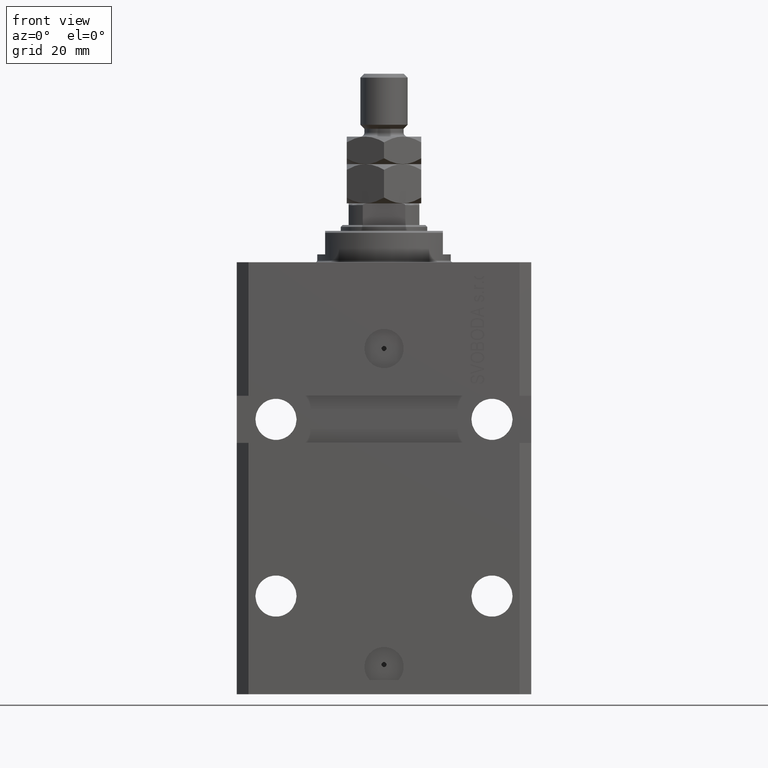
[diagram: clean part render]
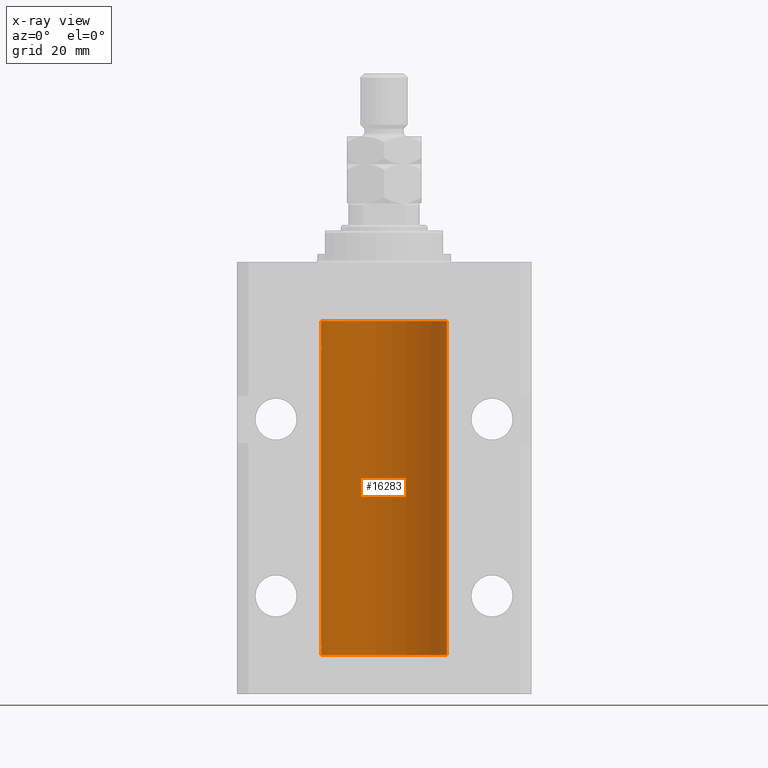
[diagram: x-ray — body ghosted, one internal face saturated and labeled with its STEP entity id]
A machine part, front view, then the same camera in x-ray: the body is ghosted and one INTERNAL B-rep face — a face not visible from any outside direction — is saturated and labeled: STEP entity #16283.
In plain terms, the highlighted cylindrical surface (partial cylindrical patch) has radius 16 mm, axis along (0, 0, 1).
Its self-contained STEP definition (entity closure, byte-faithful):
#416 = EDGE_CURVE ( 'NONE', #16940, #29323, #1516, .T. ) ;
#1516 = CIRCLE ( 'NONE', #7965, 16.00000000000000000 ) ;
#2752 = EDGE_CURVE ( 'NONE', #29323, #20110, #9530, .T. ) ;
#2793 = CARTESIAN_POINT ( 'NONE',  ( -16.00000000000013145, 3.685127046438747128E-13, -98.62500000000343903 ) ) ;
#3386 = DIRECTION ( 'NONE',  ( -0.000000000000000000, -0.000000000000000000, 1.000000000000000000 ) ) ;
#3550 = B_SPLINE_CURVE_WITH_KNOTS ( 'NONE', 3,
 ( #41367, #15644, #26076, #42105, #19141, #48790, #4510, #30739, #30013, #14663, #45089, #45816, #4274, #7250 ),
 .UNSPECIFIED., .F., .F.,
 ( 4, 2, 2, 2, 2, 2, 4 ),
 ( 1.597328219370744179E-19, 0.0002442776652680942405, 0.0004885553305361882643, 0.0009771106610723839011, 0.001221388326340481665, 0.001465665991608579430, 0.001954221322144767369 ),
 .UNSPECIFIED. ) ;
#4274 = CARTESIAN_POINT ( 'NONE',  ( -16.00000000000000000, 0.1631714642025800244, -22.62499999999985789 ) ) ;
#4335 = CYLINDRICAL_SURFACE ( 'NONE', #18904, 16.00000000000000000 ) ;
#4510 = CARTESIAN_POINT ( 'NONE',  ( -15.98779057735153941, 0.6249419637998100407, -21.83670145863507273 ) ) ;
#5359 = ORIENTED_EDGE ( 'NONE', *, *, #2752, .F. ) ;
#6907 = DIRECTION ( 'NONE',  ( 1.000000000000000000, 0.000000000000000000, 0.000000000000000000 ) ) ;
#7250 = CARTESIAN_POINT ( 'NONE',  ( -16.00000000000013145, 3.685127038166941002E-13, -22.62500000000341771 ) ) ;
#7965 = AXIS2_PLACEMENT_3D ( 'NONE', #19784, #42502, #9106 ) ;
#8306 = ORIENTED_EDGE ( 'NONE', *, *, #33682, .T. ) ;
#8417 = ORIENTED_EDGE ( 'NONE', *, *, #26098, .T. ) ;
#9106 = DIRECTION ( 'NONE',  ( 1.000000000000000000, 0.000000000000000000, 0.000000000000000000 ) ) ;
#9530 = LINE ( 'NONE', #42669, #19817 ) ;
#11796 = EDGE_CURVE ( 'NONE', #43022, #32579, #18988, .T. ) ;
#12331 = CARTESIAN_POINT ( 'NONE',  ( -16.00000000000000000, -1.303459030566954747E-14, -97.37500000000000000 ) ) ;
#14147 = DIRECTION ( 'NONE',  ( -0.000000000000000000, -0.000000000000000000, 1.000000000000000000 ) ) ;
#14519 = CARTESIAN_POINT ( 'NONE',  ( -16.00000000000000000, 1.959434878635765131E-15, -100.0999999999999943 ) ) ;
#14650 = CARTESIAN_POINT ( 'NONE',  ( -16.00000000000000711, 0.08259886010188650929, -97.37500000000000000 ) ) ;
#14663 = CARTESIAN_POINT ( 'NONE',  ( -15.99070426498503217, 0.5462220647145618058, -22.31460064614143590 ) ) ;
#15104 = VERTEX_POINT ( 'NONE', #29884 ) ;
#15418 = CARTESIAN_POINT ( 'NONE',  ( -16.00000000000013145, 3.685127038166941002E-13, -22.62500000000341771 ) ) ;
#15644 = CARTESIAN_POINT ( 'NONE',  ( -16.00000000000000711, 0.08259886010189904093, -21.37500000000000000 ) ) ;
#15649 = ORIENTED_EDGE ( 'NONE', *, *, #11796, .F. ) ;
#16279 = ORIENTED_EDGE ( 'NONE', *, *, #24719, .T. ) ;
#16283 = ADVANCED_FACE ( 'NONE', ( #25896 ), #4335, .F. ) ;
#16940 = VERTEX_POINT ( 'NONE', #25547 ) ;
#17646 = CARTESIAN_POINT ( 'NONE',  ( 16.00000000000000000, 0.000000000000000000, -100.0999999999999943 ) ) ;
#17898 = CARTESIAN_POINT ( 'NONE',  ( -15.98778717651346604, 0.6250289588122097673, -98.08131585687051768 ) ) ;
#18069 = CARTESIAN_POINT ( 'NONE',  ( -16.00000000000000000, 1.643679961284177128E-16, -21.37499999999999645 ) ) ;
#18468 = DIRECTION ( 'NONE',  ( -0.000000000000000000, -0.000000000000000000, 1.000000000000000000 ) ) ;
#18904 = AXIS2_PLACEMENT_3D ( 'NONE', #33293, #18468, #33527 ) ;
#18988 = LINE ( 'NONE', #14519, #33851 ) ;
#19141 = CARTESIAN_POINT ( 'NONE',  ( -15.99548640841683067, 0.3843705577988847377, -21.50046628527008608 ) ) ;
#19768 = B_SPLINE_CURVE_WITH_KNOTS ( 'NONE', 3,
 ( #25347, #14650, #40396, #25100, #36445, #48535, #21861, #17898, #36681, #39902, #36915, #33453, #29758, #2793 ),
 .UNSPECIFIED., .F., .F.,
 ( 4, 2, 2, 2, 2, 2, 4 ),
 ( 1.003919637555167698E-18, 0.0002442776652680894158, 0.0004885553305361776391, 0.0009771106610723541940, 0.001221388326340463017, 0.001465665991608572274, 0.001954221322144760863 ),
 .UNSPECIFIED. ) ;
#19784 = CARTESIAN_POINT ( 'NONE',  ( 0.000000000000000000, 0.000000000000000000, -100.0999999999999943 ) ) ;
#19817 = VECTOR ( 'NONE', #20180, 1000.000000000000000 ) ;
#20110 = VERTEX_POINT ( 'NONE', #40127 ) ;
#20180 = DIRECTION ( 'NONE',  ( -0.000000000000000000, -0.000000000000000000, 1.000000000000000000 ) ) ;
#21366 = LINE ( 'NONE', #17646, #40035 ) ;
#21861 = CARTESIAN_POINT ( 'NONE',  ( -15.98779057735153941, 0.6249419637998017141, -97.83670145863504786 ) ) ;
#22250 = ORIENTED_EDGE ( 'NONE', *, *, #38049, .F. ) ;
#24719 = EDGE_CURVE ( 'NONE', #48261, #32579, #3550, .T. ) ;
#25100 = CARTESIAN_POINT ( 'NONE',  ( -15.99707730059171240, 0.3150375992092294686, -97.45402333202572720 ) ) ;
#25347 = CARTESIAN_POINT ( 'NONE',  ( -16.00000000000000000, -1.303459030566954747E-14, -97.37500000000000000 ) ) ;
#25547 = CARTESIAN_POINT ( 'NONE',  ( 16.00000000000000000, 0.000000000000000000, -100.0999999999999943 ) ) ;
#25737 = DIRECTION ( 'NONE',  ( 0.000000000000000000, 0.000000000000000000, 1.000000000000000000 ) ) ;
#25896 = FACE_OUTER_BOUND ( 'NONE', #38230, .T. ) ;
#26024 = ORIENTED_EDGE ( 'NONE', *, *, #34765, .T. ) ;
#26039 = CARTESIAN_POINT ( 'NONE',  ( 16.00000000000000000, 0.000000000000000000, -15.00000000000000000 ) ) ;
#26076 = CARTESIAN_POINT ( 'NONE',  ( -15.99934216141748244, 0.1636497843296417787, -21.39126528029306229 ) ) ;
#26098 = EDGE_CURVE ( 'NONE', #41995, #15104, #32553, .T. ) ;
#26472 = CARTESIAN_POINT ( 'NONE',  ( 0.000000000000000000, 0.000000000000000000, -15.00000000000000000 ) ) ;
#29323 = VERTEX_POINT ( 'NONE', #34492 ) ;
#29758 = CARTESIAN_POINT ( 'NONE',  ( -15.99999999999998934, 0.1631714642025804407, -98.62499999999987210 ) ) ;
#29884 = CARTESIAN_POINT ( 'NONE',  ( -16.00000000000000000, 1.959434878635765131E-15, -15.00000000000000000 ) ) ;
#30013 = CARTESIAN_POINT ( 'NONE',  ( -15.98844267028591482, 0.6088369347963316081, -22.16324735024328518 ) ) ;
#30739 = CARTESIAN_POINT ( 'NONE',  ( -15.98778717651346071, 0.6250289588122140971, -22.08131585687052478 ) ) ;
#32178 = ORIENTED_EDGE ( 'NONE', *, *, #416, .F. ) ;
#32553 = CIRCLE ( 'NONE', #33351, 16.00000000000000000 ) ;
#32579 = VERTEX_POINT ( 'NONE', #15418 ) ;
#33293 = CARTESIAN_POINT ( 'NONE',  ( 0.000000000000000000, 0.000000000000000000, -100.0999999999999943 ) ) ;
#33351 = AXIS2_PLACEMENT_3D ( 'NONE', #26472, #25737, #6907 ) ;
#33453 = CARTESIAN_POINT ( 'NONE',  ( -15.99711699979841661, 0.3253759916140614439, -98.55856151623174810 ) ) ;
#33527 = DIRECTION ( 'NONE',  ( 1.000000000000000000, 0.000000000000000000, 0.000000000000000000 ) ) ;
#33682 = EDGE_CURVE ( 'NONE', #16940, #41995, #21366, .T. ) ;
#33851 = VECTOR ( 'NONE', #3386, 1000.000000000000000 ) ;
#34492 = CARTESIAN_POINT ( 'NONE',  ( -16.00000000000000000, 1.959434878635765131E-15, -100.0999999999999943 ) ) ;
#34765 = EDGE_CURVE ( 'NONE', #43022, #20110, #19768, .T. ) ;
#36445 = CARTESIAN_POINT ( 'NONE',  ( -15.99548640841682712, 0.3843705577988784650, -97.50046628527007897 ) ) ;
#36681 = CARTESIAN_POINT ( 'NONE',  ( -15.98844267028590949, 0.6088369347963275002, -98.16324735024325321 ) ) ;
#36915 = CARTESIAN_POINT ( 'NONE',  ( -15.99228023727724057, 0.5003781296993360383, -98.38347829554236057 ) ) ;
#38049 = EDGE_CURVE ( 'NONE', #48261, #15104, #47331, .T. ) ;
#38230 = EDGE_LOOP ( 'NONE', ( #5359, #32178, #8306, #8417, #22250, #16279, #15649, #26024 ) ) ;
#39155 = CARTESIAN_POINT ( 'NONE',  ( -16.00000000000000000, 1.959434878635765131E-15, -100.0999999999999943 ) ) ;
#39902 = CARTESIAN_POINT ( 'NONE',  ( -15.99070426498503572, 0.5462220647145610286, -98.31460064614144301 ) ) ;
#40035 = VECTOR ( 'NONE', #14147, 1000.000000000000000 ) ;
#40127 = CARTESIAN_POINT ( 'NONE',  ( -16.00000000000013145, 3.685127046438747128E-13, -98.62500000000343903 ) ) ;
#40396 = CARTESIAN_POINT ( 'NONE',  ( -15.99934216141748244, 0.1636497843296308152, -97.39126528029306940 ) ) ;
#40965 = VECTOR ( 'NONE', #46588, 1000.000000000000000 ) ;
#41367 = CARTESIAN_POINT ( 'NONE',  ( -16.00000000000000000, 1.643679961284177128E-16, -21.37499999999999645 ) ) ;
#41995 = VERTEX_POINT ( 'NONE', #26039 ) ;
#42105 = CARTESIAN_POINT ( 'NONE',  ( -15.99707730059171240, 0.3150375992092407373, -21.45402333202571654 ) ) ;
#42502 = DIRECTION ( 'NONE',  ( 0.000000000000000000, 0.000000000000000000, 1.000000000000000000 ) ) ;
#42669 = CARTESIAN_POINT ( 'NONE',  ( -16.00000000000000000, 1.959434878635765131E-15, -100.0999999999999943 ) ) ;
#43022 = VERTEX_POINT ( 'NONE', #12331 ) ;
#45089 = CARTESIAN_POINT ( 'NONE',  ( -15.99228023727724413, 0.5003781296993413674, -22.38347829554236057 ) ) ;
#45816 = CARTESIAN_POINT ( 'NONE',  ( -15.99711699979842017, 0.3253759916140657737, -22.55856151623175521 ) ) ;
#46588 = DIRECTION ( 'NONE',  ( -0.000000000000000000, -0.000000000000000000, 1.000000000000000000 ) ) ;
#47331 = LINE ( 'NONE', #39155, #40965 ) ;
#48261 = VERTEX_POINT ( 'NONE', #18069 ) ;
#48535 = CARTESIAN_POINT ( 'NONE',  ( -15.99070653155267685, 0.5573233280232928744, -97.67348148680505915 ) ) ;
#48790 = CARTESIAN_POINT ( 'NONE',  ( -15.99070653155267685, 0.5573233280232986475, -21.67348148680506625 ) ) ;